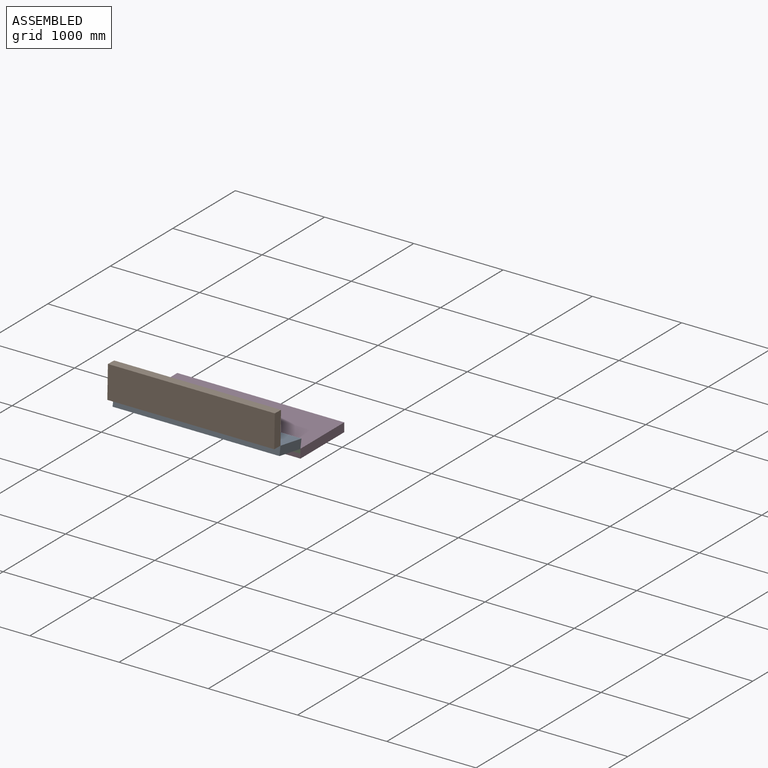
[diagram: assembled view]
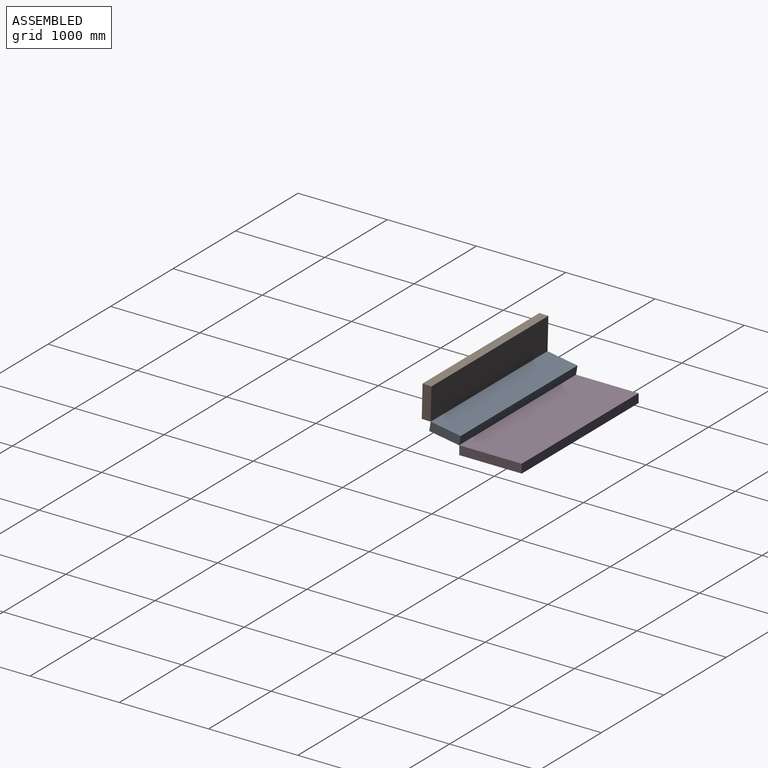
[diagram: assembled view, second angle]
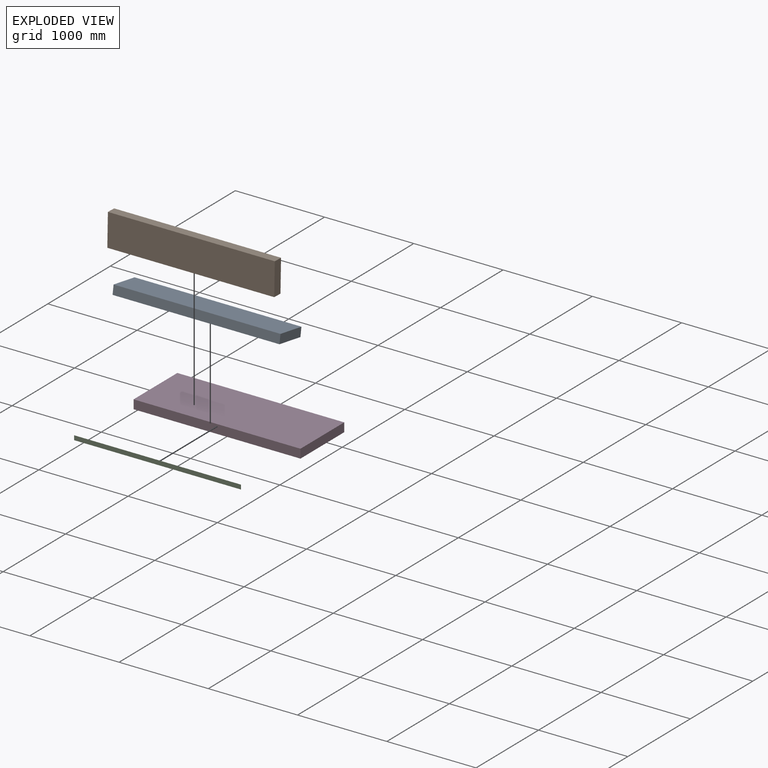
[diagram: exploded view]
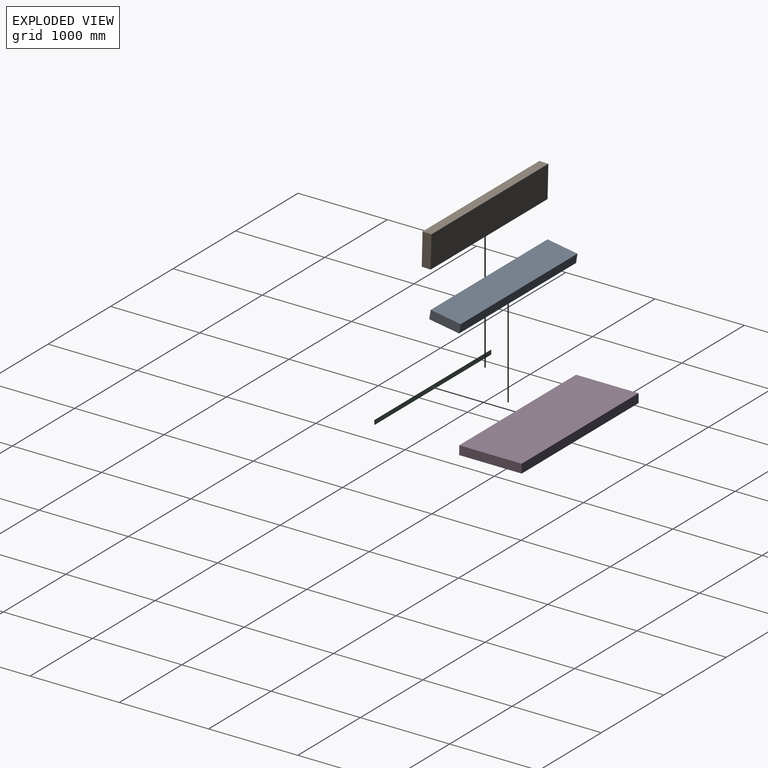
[diagram: exploded view, second angle]
ASSEMBLY  parts=4 mates=3
PART A: 8 faces, bbox 1870x340x100 mm
  f0: plane 1870x340mm, normal (0,0,1), area 635800mm2, adj f1,f5,f6,f7
  f1: plane 1870x100mm, normal (0,-1,0), area 187000mm2, adj f0,f2,f6,f7
  f2: plane 1870x340mm, normal (0,0,-1), area 635800mm2, adj f1,f3,f6,f7
  f3: plane 1870x0.87mm, normal (0,0.99,0.14), area 1646mm2, adj f2,f4,f6,f7
  f4: plane 1870x0.24mm, normal (0,0.89,-0.45), area 497.7mm2, adj f3,f5,f6,f7
  f5: plane 1870x98.89mm, normal (0,1,0), area 184925mm2, adj f0,f4,f6,f7
  f6: plane 340x100mm, normal (1,0,0), area 33999.9mm2, adj f0,f1,f2,f3,f4,f5
  f7: plane 340x100mm, normal (-1,0,0), area 33999.9mm2, adj f0,f1,f2,f3,f4,f5
PART B: 6 faces, bbox 1870x360x100 mm
  f0: plane 1870x100mm, normal (0,1,0), area 187000mm2, adj f1,f3,f4,f5
  f1: plane 1870x360mm, normal (0,0,1), area 673200mm2, adj f0,f2,f4,f5
  f2: plane 1870x100mm, normal (0,-1,0), area 187000mm2, adj f1,f3,f4,f5
  f3: plane 1870x360mm, normal (0,0,-1), area 673200mm2, adj f0,f2,f4,f5
  f4: plane 360x100mm, normal (1,0,0), area 36000mm2, adj f0,f1,f2,f3
  f5: plane 360x100mm, normal (-1,0,0), area 36000mm2, adj f0,f1,f2,f3
PART C: 6 faces, bbox 1870x22.5x44.9 mm
  f0: plane 1870x1.11mm, normal (0,-1,0), area 2075mm2, adj f1,f3,f4,f5
  f1: plane 1870x44.64mm, normal (0,0.89,-0.45), area 93500mm2, adj f0,f2,f4,f5
  f2: plane 1870x0.45mm, normal (0,0.45,0.89), area 935mm2, adj f1,f3,f4,f5
  f3: plane 1870x43.75mm, normal (0,-0.89,0.45), area 91647.6mm2, adj f0,f2,f4,f5
  f4: plane 44.86x22.53mm, normal (1,0,0), area 24.8mm2, adj f0,f1,f2,f3
  f5: plane 44.86x22.53mm, normal (-1,0,0), area 24.8mm2, adj f0,f1,f2,f3
PART D: 6 faces, bbox 1870x700x100 mm
  f0: plane 1870x700mm, normal (0,0,1), area 1309000mm2, adj f1,f3,f4,f5
  f1: plane 1870x100mm, normal (0,-1,0), area 187000mm2, adj f0,f2,f4,f5
  f2: plane 1870x700mm, normal (0,0,-1), area 1309000mm2, adj f1,f3,f4,f5
  f3: plane 1870x100mm, normal (0,1,0), area 187000mm2, adj f0,f2,f4,f5
  f4: plane 700x100mm, normal (1,0,0), area 70000mm2, adj f0,f1,f2,f3
  f5: plane 700x100mm, normal (-1,0,0), area 70000mm2, adj f0,f1,f2,f3
PLACE A rot(axis=(-1,0,0),9.3deg) t=(0,28.97,11.6)mm
PLACE B rot(axis=(-1,0,0),91.5deg) t=(0,-839.54,-682.29)mm
PLACE C rot(axis=(-1,0,0),152.6deg) t=(0,-893.91,-298.35)mm
PLACE D t=(0,-0.06,0.99)mm fixed
MATE revolute C.f4 <-> A.f6  axis (1,0,0) through (1870,-484.01,10.27)mm
MATE revolute A.f6 <-> B.f4  axis (1,0,0) through (1870,-803.44,163.01)mm
MATE revolute D.f4 <-> C.f4  axis (1,0,0) through (1870,-483.47,-39.73)mm
